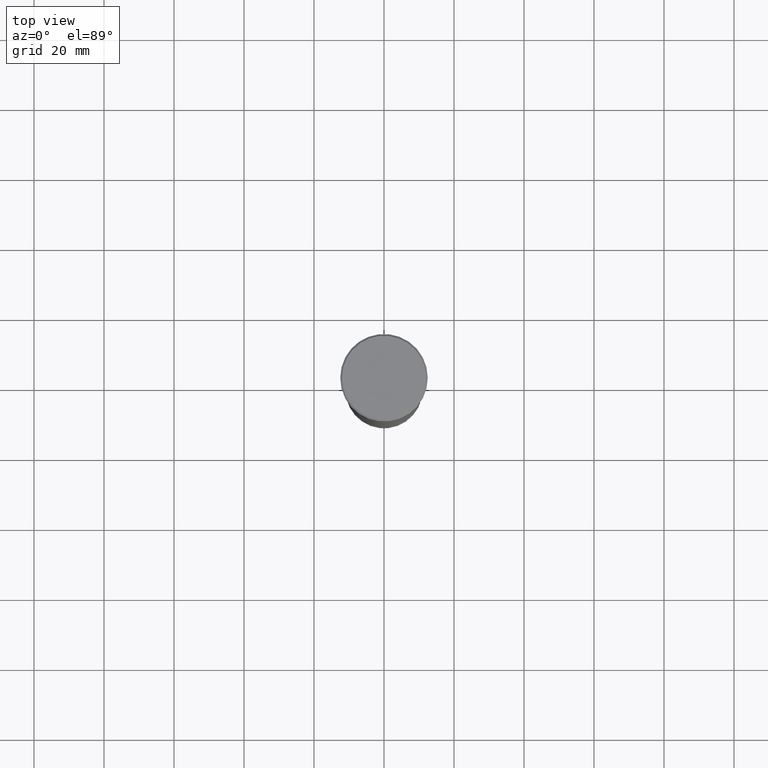
[diagram: clean part render]
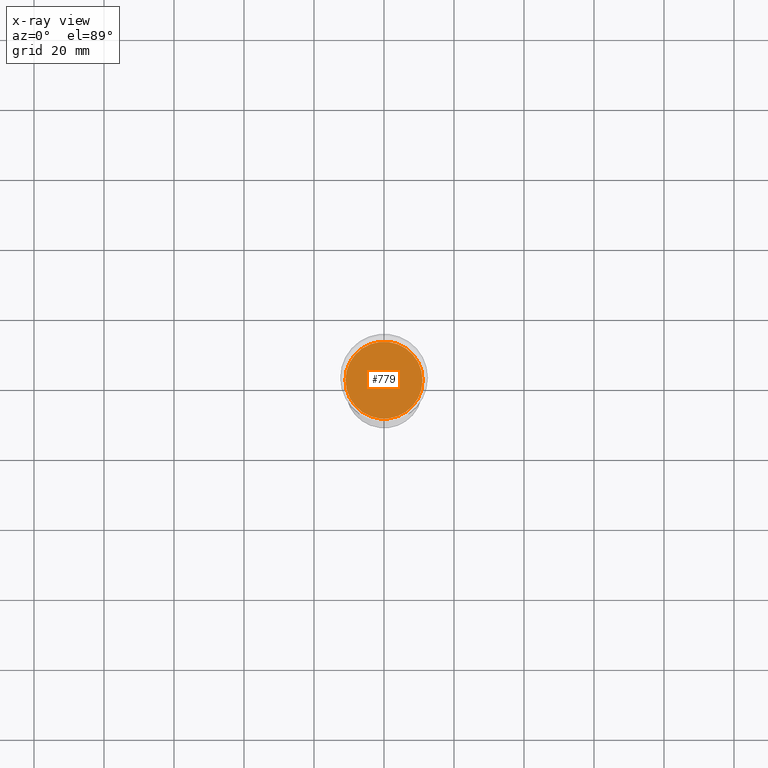
[diagram: x-ray — body ghosted, one internal face saturated and labeled with its STEP entity id]
A machine part, top view, then the same camera in x-ray: the body is ghosted and one INTERNAL B-rep face — a face not visible from any outside direction — is saturated and labeled: STEP entity #779.
In plain terms, the highlighted planar face has unit normal (0, 0, -1).
Its self-contained STEP definition (entity closure, byte-faithful):
#36 = ORIENTED_EDGE ( 'NONE', *, *, #1011, .T. ) ;
#74 = EDGE_LOOP ( 'NONE', ( #36, #182 ) ) ;
#148 = VERTEX_POINT ( 'NONE', #366 ) ;
#182 = ORIENTED_EDGE ( 'NONE', *, *, #888, .T. ) ;
#243 = VERTEX_POINT ( 'NONE', #388 ) ;
#274 = DIRECTION ( 'NONE',  ( -1.000000000000000000, 0.000000000000000000, 0.000000000000000000 ) ) ;
#366 = CARTESIAN_POINT ( 'NONE',  ( -11.00000000000000000, 1.347111479062088207E-15, -41.99999999999999289 ) ) ;
#371 = DIRECTION ( 'NONE',  ( 0.000000000000000000, 0.000000000000000000, -1.000000000000000000 ) ) ;
#388 = CARTESIAN_POINT ( 'NONE',  ( 11.00000000000000000, 0.000000000000000000, -41.99999999999999289 ) ) ;
#439 = CIRCLE ( 'NONE', #926, 11.00000000000000000 ) ;
#466 = CARTESIAN_POINT ( 'NONE',  ( 0.000000000000000000, 0.000000000000000000, -41.99999999999999289 ) ) ;
#554 = DIRECTION ( 'NONE',  ( -1.000000000000000000, 0.000000000000000000, 0.000000000000000000 ) ) ;
#602 = AXIS2_PLACEMENT_3D ( 'NONE', #715, #371, #274 ) ;
#645 = DIRECTION ( 'NONE',  ( 0.000000000000000000, 0.000000000000000000, -1.000000000000000000 ) ) ;
#715 = CARTESIAN_POINT ( 'NONE',  ( 0.000000000000000000, 0.000000000000000000, -41.99999999999999289 ) ) ;
#731 = PLANE ( 'NONE',  #1001 ) ;
#779 = ADVANCED_FACE ( 'NONE', ( #913 ), #731, .T. ) ;
#817 = DIRECTION ( 'NONE',  ( 0.000000000000000000, 0.000000000000000000, -1.000000000000000000 ) ) ;
#841 = CARTESIAN_POINT ( 'NONE',  ( 0.000000000000000000, 0.000000000000000000, -41.99999999999999289 ) ) ;
#888 = EDGE_CURVE ( 'NONE', #148, #243, #952, .T. ) ;
#913 = FACE_OUTER_BOUND ( 'NONE', #74, .T. ) ;
#926 = AXIS2_PLACEMENT_3D ( 'NONE', #841, #645, #554 ) ;
#952 = CIRCLE ( 'NONE', #602, 11.00000000000000000 ) ;
#1001 = AXIS2_PLACEMENT_3D ( 'NONE', #466, #817, #1123 ) ;
#1011 = EDGE_CURVE ( 'NONE', #243, #148, #439, .T. ) ;
#1123 = DIRECTION ( 'NONE',  ( -1.000000000000000000, 0.000000000000000000, -0.000000000000000000 ) ) ;